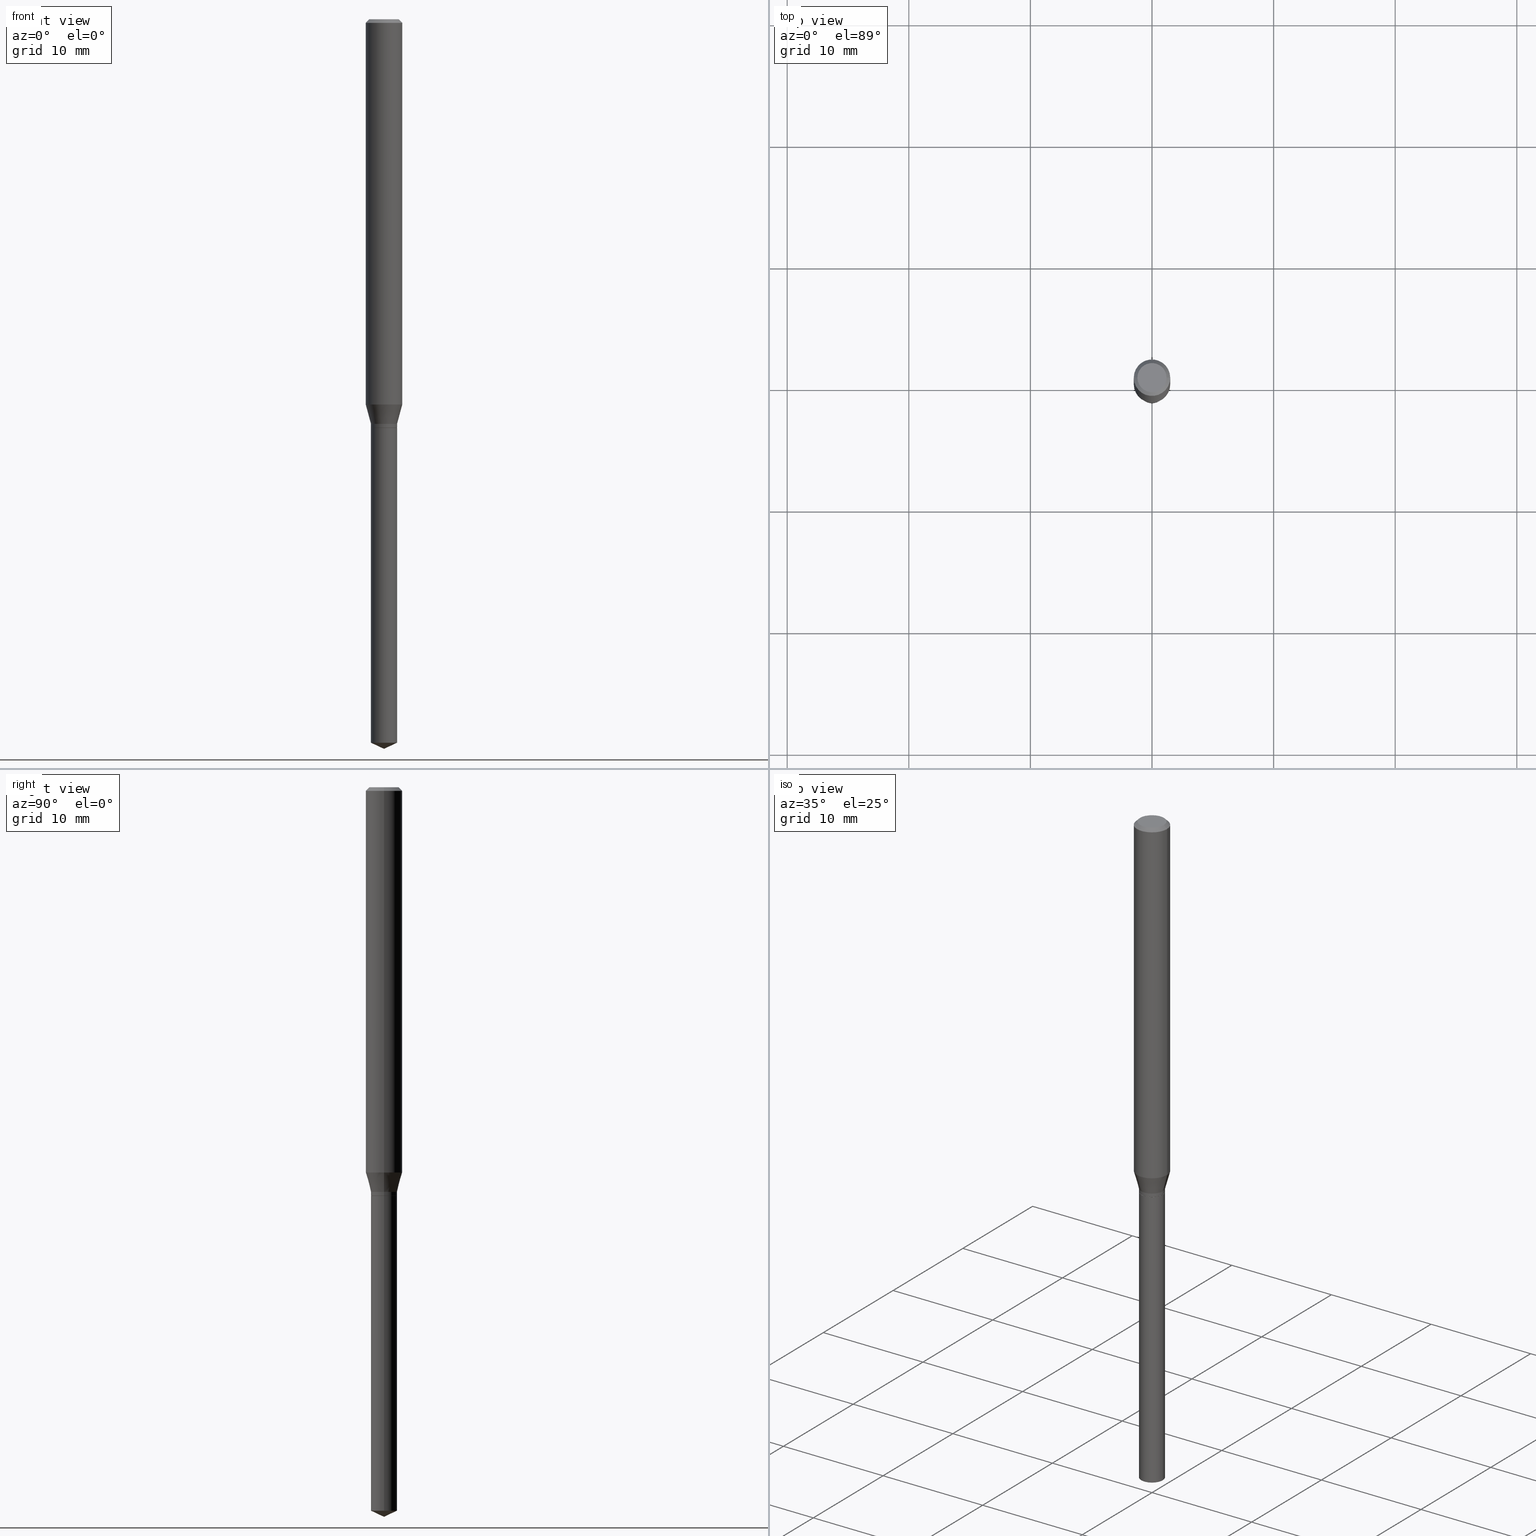
[diagram: canonical four-view strip — front | top / right | iso, engineering-drawing reading convention]
A machine part, canonical four-view strip (front | top / right | iso — engineering-drawing reading convention). The complete STEP part file that produces these views, byte-faithful:
ISO-10303-21;
HEADER;
FILE_DESCRIPTION (( 'STEP AP203' ),
    '1' );
FILE_NAME ('07963.STEP',
    '2024-04-24T07:24:16',
    ( '' ),
    ( '' ),
    'SwSTEP 2.0',
    'SolidWorks 2023',
    '' );
FILE_SCHEMA (( 'CONFIG_CONTROL_DESIGN' ));
ENDSEC;

DATA;
#1 = AXIS2_PLACEMENT_3D ( 'NONE', #385, #116, #303 ) ;
#2 = CIRCLE ( 'NONE', #24, 0.04230000000000002508 ) ;
#3 = DIRECTION ( 'NONE',  ( -0.2588190451025225713, 5.211531920934557353E-15, 0.9659258262890676461 ) ) ;
#4 = CARTESIAN_POINT ( 'NONE',  ( 0.04230000000000002508, -2.953793212661292507E-16, 2.062622776161681872E-30 ) ) ;
#5 = DIMENSIONAL_EXPONENTS ( 1.000000000000000000, 0.000000000000000000, 0.000000000000000000, 0.000000000000000000, 0.000000000000000000, 0.000000000000000000, 0.000000000000000000 ) ;
#6 = DIRECTION ( 'NONE',  ( 1.000000000000000000, -6.982962677686267499E-15, 0.000000000000000000 ) ) ;
#7 = CONICAL_SURFACE ( 'NONE', #98, 0.04179999999999999688, 0.7853981633978495136 ) ;
#8 = ORIENTED_EDGE ( 'NONE', *, *, #452, .F. ) ;
#9 = DIRECTION ( 'NONE',  ( -2.445468806185136597E-29, 3.491481338843145583E-15, 1.000000000000000000 ) ) ;
#10 = VERTEX_POINT ( 'NONE', #488 ) ;
#11 = DIRECTION ( 'NONE',  ( -2.445468806185136597E-29, 3.491481338843145583E-15, 1.000000000000000000 ) ) ;
#12 = CARTESIAN_POINT ( 'NONE',  ( 3.203808682983147121E-29, -4.574189702018404300E-15, -1.310099999999999820 ) ) ;
#13 = EDGE_LOOP ( 'NONE', ( #280, #482, #296, #170 ) ) ;
#14 = AXIS2_PLACEMENT_3D ( 'NONE', #70, #228, #382 ) ;
#15 = FACE_OUTER_BOUND ( 'NONE', #258, .T. ) ;
#16 = VECTOR ( 'NONE', #3, 39.37007874015748854 ) ;
#17 = ADVANCED_FACE ( 'NONE', ( #346 ), #307, .F. ) ;
#18 = LINE ( 'NONE', #103, #411 ) ;
#19 = DESIGN_CONTEXT ( 'detailed design', #187, 'design' ) ;
#20 = EDGE_CURVE ( 'NONE', #260, #143, #85, .T. ) ;
#21 = LINE ( 'NONE', #369, #311 ) ;
#22 = ORIENTED_EDGE ( 'NONE', *, *, #234, .T. ) ;
#23 = VERTEX_POINT ( 'NONE', #195 ) ;
#24 = AXIS2_PLACEMENT_3D ( 'NONE', #284, #472, #289 ) ;
#25 = LINE ( 'NONE', #221, #370 ) ;
#26 = CC_DESIGN_DATE_AND_TIME_ASSIGNMENT ( #147, #185, ( #364 ) ) ;
#27 = ORIENTED_EDGE ( 'NONE', *, *, #256, .F. ) ;
#28 = CARTESIAN_POINT ( 'NONE',  ( 3.050937901280267645E-29, -4.355930740701863379E-15, -1.247588148973221012 ) ) ;
#29 = ORIENTED_EDGE ( 'NONE', *, *, #191, .T. ) ;
#30 = DIRECTION ( 'NONE',  ( 0.000000000000000000, 0.000000000000000000, 1.000000000000000000 ) ) ;
#31 = ORIENTED_EDGE ( 'NONE', *, *, #252, .F. ) ;
#32 = SHAPE_DEFINITION_REPRESENTATION ( #255, #338 ) ;
#33 = AXIS2_PLACEMENT_3D ( 'NONE', #175, #444, #332 ) ;
#34 = EDGE_LOOP ( 'NONE', ( #224, #242, #330, #485 ) ) ;
#35 = DATE_AND_TIME ( #193, #236 ) ;
#36 = CC_DESIGN_APPROVAL ( #337, ( #199 ) ) ;
#37 = CARTESIAN_POINT ( 'NONE',  ( 3.203808682983147121E-29, -4.574189702018404300E-15, -1.310099999999999820 ) ) ;
#38 = CALENDAR_DATE ( 2024, 24, 4 ) ;
#39 = PERSON_AND_ORGANIZATION ( #424, #99 ) ;
#40 = CC_DESIGN_PERSON_AND_ORGANIZATION_ASSIGNMENT ( #190, #112, ( #396 ) ) ;
#41 = DIRECTION ( 'NONE',  ( -2.445468806185136597E-29, 3.491481338843145583E-15, 1.000000000000000000 ) ) ;
#42 = DIRECTION ( 'NONE',  ( 1.000000000000000000, -6.982962677686266711E-15, 4.876176775795935232E-29 ) ) ;
#43 = ORIENTED_EDGE ( 'NONE', *, *, #442, .F. ) ;
#44 = ADVANCED_FACE ( 'NONE', ( #308 ), #153, .T. ) ;
#45 = CARTESIAN_POINT ( 'NONE',  ( 2.888098660104664204E-31, -4.123439461173780263E-17, -0.01181000000000007218 ) ) ;
#46 = CONICAL_SURFACE ( 'NONE', #247, 0.05904999999999999832, 0.7853981633974452814 ) ;
#47 = DIRECTION ( 'NONE',  ( -2.445468806185136877E-29, 3.491481338843145188E-15, 1.000000000000000000 ) ) ;
#48 = CYLINDRICAL_SURFACE ( 'NONE', #33, 0.05905000000000007465 ) ;
#49 = EDGE_LOOP ( 'NONE', ( #56, #141 ) ) ;
#50 = FACE_OUTER_BOUND ( 'NONE', #435, .T. ) ;
#51 = DIRECTION ( 'NONE',  ( 0.2588190451025225713, 1.565188264969611712E-15, 0.9659258262890676461 ) ) ;
#52 = AXIS2_PLACEMENT_3D ( 'NONE', #265, #335, #339 ) ;
#53 = ADVANCED_FACE ( 'NONE', ( #269 ), #419, .F. ) ;
#54 = DIRECTION ( 'NONE',  ( 1.000000000000000000, -6.982962677686266711E-15, 0.000000000000000000 ) ) ;
#55 = FACE_OUTER_BOUND ( 'NONE', #407, .T. ) ;
#56 = ORIENTED_EDGE ( 'NONE', *, *, #20, .T. ) ;
#57 = EDGE_LOOP ( 'NONE', ( #218, #61 ) ) ;
#58 = DIRECTION ( 'NONE',  ( 1.000000000000000000, -6.982962677686266711E-15, 4.876185090822587894E-29 ) ) ;
#59 = EDGE_CURVE ( 'NONE', #10, #23, #239, .T. ) ;
#60 = VECTOR ( 'NONE', #51, 39.37007874015748854 ) ;
#61 = ORIENTED_EDGE ( 'NONE', *, *, #344, .F. ) ;
#62 = DIRECTION ( 'NONE',  ( -2.445468806185136597E-29, 3.491481338843145583E-15, 1.000000000000000000 ) ) ;
#63 = APPROVAL_PERSON_ORGANIZATION ( #413, #337, #342 ) ;
#64 = ORIENTED_EDGE ( 'NONE', *, *, #467, .F. ) ;
#65 = APPROVAL_STATUS ( 'not_yet_approved' ) ;
#66 = ORIENTED_EDGE ( 'NONE', *, *, #398, .T. ) ;
#67 = EDGE_CURVE ( 'NONE', #111, #254, #484, .T. ) ;
#68 = COORDINATED_UNIVERSAL_TIME_OFFSET ( 5, 0, .BEHIND. ) ;
#69 = CIRCLE ( 'NONE', #226, 0.04724000000000000421 ) ;
#70 = CARTESIAN_POINT ( 'NONE',  ( 3.050937901280267645E-29, -4.355930740701863379E-15, -1.247588148973221012 ) ) ;
#71 = LOCAL_TIME ( 3, 24, 16.00000000000000000, #264 ) ;
#72 = PERSON_AND_ORGANIZATION ( #424, #99 ) ;
#73 = APPROVAL_DATE_TIME ( #374, #337 ) ;
#74 = EDGE_CURVE ( 'NONE', #104, #480, #159, .T. ) ;
#75 = DIRECTION ( 'NONE',  ( -2.445468806185136597E-29, 3.491481338843145583E-15, 1.000000000000000000 ) ) ;
#76 = AXIS2_PLACEMENT_3D ( 'NONE', #37, #208, #399 ) ;
#77 = DIRECTION ( 'NONE',  ( 1.000000000000000000, -6.982962677686266711E-15, 0.000000000000000000 ) ) ;
#78 = VECTOR ( 'NONE', #292, 39.37007874015748854 ) ;
#79 = CARTESIAN_POINT ( 'NONE',  ( 5.776686413970529753E-29, -8.247577218615279626E-15, -2.362200000000000077 ) ) ;
#80 = ORIENTED_EDGE ( 'NONE', *, *, #398, .F. ) ;
#81 = ADVANCED_FACE ( 'NONE', ( #161 ), #148, .T. ) ;
#82 = CARTESIAN_POINT ( 'NONE',  ( 3.234866136821698001E-29, -4.618531515021712068E-15, -1.322799999999999976 ) ) ;
#83 = CARTESIAN_POINT ( 'NONE',  ( 0.04230000000000002508, -4.869569023284533748E-15, -1.310099999999999820 ) ) ;
#84 = EDGE_CURVE ( 'NONE', #111, #10, #314, .T. ) ;
#85 = CIRCLE ( 'NONE', #52, 0.04229999999999999732 ) ;
#86 = DIRECTION ( 'NONE',  ( 1.000000000000000000, -6.982962677686265922E-15, 4.876176775795935793E-29 ) ) ;
#87 = FACE_OUTER_BOUND ( 'NONE', #13, .T. ) ;
#88 = AXIS2_PLACEMENT_3D ( 'NONE', #392, #429, #207 ) ;
#89 = EDGE_LOOP ( 'NONE', ( #328, #477 ) ) ;
#90 = DIRECTION ( 'NONE',  ( 2.445468806185136597E-29, -3.491481338843145583E-15, -1.000000000000000000 ) ) ;
#91 = CARTESIAN_POINT ( 'NONE',  ( 0.04229999999999999039, -8.474087720097896085E-15, -2.342475186060043235 ) ) ;
#92 = DIRECTION ( 'NONE',  ( -2.445468806185136877E-29, 3.491481338843145188E-15, 1.000000000000000000 ) ) ;
#93 = DIRECTION ( 'NONE',  ( -2.445468806185136597E-29, 3.491481338843145583E-15, 1.000000000000000000 ) ) ;
#94 = ORIENTED_EDGE ( 'NONE', *, *, #327, .F. ) ;
#95 = CARTESIAN_POINT ( 'NONE',  ( 0.04724000000000000421, -3.852183633974369345E-16, -3.380025165621689721E-19 ) ) ;
#96 = ORIENTED_EDGE ( 'NONE', *, *, #418, .F. ) ;
#97 = EDGE_CURVE ( 'NONE', #107, #412, #343, .T. ) ;
#98 = AXIS2_PLACEMENT_3D ( 'NONE', #449, #361, #172 ) ;
#99 = ORGANIZATION ( 'UNSPECIFIED', 'UNSPECIFIED', '' ) ;
#100 = LOCAL_TIME ( 3, 24, 16.00000000000000000, #305 ) ;
#101 = VERTEX_POINT ( 'NONE', #91 ) ;
#102 = CC_DESIGN_DATE_AND_TIME_ASSIGNMENT ( #416, #118, ( #199 ) ) ;
#103 = CARTESIAN_POINT ( 'NONE',  ( -0.05904999999999999832, 3.711095515056362547E-16, -0.01181000000000007218 ) ) ;
#104 = VERTEX_POINT ( 'NONE', #431 ) ;
#105 = LINE ( 'NONE', #321, #270 ) ;
#106 = CARTESIAN_POINT ( 'NONE',  ( 8.265746106709734507E-48, -1.180129479067563789E-33, -3.380025165646692144E-19 ) ) ;
#107 = VERTEX_POINT ( 'NONE', #238 ) ;
#108 = VECTOR ( 'NONE', #181, 39.37007874015748143 ) ;
#109 = PERSON_AND_ORGANIZATION ( #424, #99 ) ;
#110 = ADVANCED_FACE ( 'NONE', ( #87 ), #433, .T. ) ;
#111 = VERTEX_POINT ( 'NONE', #125 ) ;
#112 = PERSON_AND_ORGANIZATION_ROLE ( 'creator' ) ;
#113 = MANIFOLD_SOLID_BREP ( 'Body-Move/Copy2[2]', #446 ) ;
#114 = CIRCLE ( 'NONE', #456, 0.05905000000000015098 ) ;
#115 = MECHANICAL_CONTEXT ( 'NONE', #133, 'mechanical' ) ;
#116 = DIRECTION ( 'NONE',  ( 2.438088387897960049E-29, -3.491481338843145188E-15, -1.000000000000000000 ) ) ;
#117 = APPROVAL ( #297, 'UNSPECIFIED' ) ;
#118 = DATE_TIME_ROLE ( 'creation_date' ) ;
#119 = CARTESIAN_POINT ( 'NONE',  ( 4.132873053354867254E-48, -5.900647395337818946E-34, -1.690012582823346072E-19 ) ) ;
#120 = AXIS2_PLACEMENT_3D ( 'NONE', #353, #9, #173 ) ;
#121 = EDGE_CURVE ( 'NONE', #254, #111, #409, .T. ) ;
#122 = CARTESIAN_POINT ( 'NONE',  ( 3.203808682983147121E-29, -4.574189702018404300E-15, -1.310099999999999820 ) ) ;
#123 = ORIENTED_EDGE ( 'NONE', *, *, #97, .F. ) ;
#124 = DIRECTION ( 'NONE',  ( -2.445468806185136597E-29, 3.491481338843145583E-15, 1.000000000000000000 ) ) ;
#125 = CARTESIAN_POINT ( 'NONE',  ( 0.04230000000000002508, -4.869569023284533748E-15, -1.310099999999999820 ) ) ;
#126 = CC_DESIGN_PERSON_AND_ORGANIZATION_ASSIGNMENT ( #331, #458, ( #364 ) ) ;
#127 = DIRECTION ( 'NONE',  ( -1.000000000000000000, 6.982962677686266711E-15, 0.000000000000000000 ) ) ;
#128 = LINE ( 'NONE', #279, #468 ) ;
#129 = ORIENTED_EDGE ( 'NONE', *, *, #84, .F. ) ;
#130 = DIRECTION ( 'NONE',  ( -1.000000000000000000, 6.982962677686266711E-15, 0.000000000000000000 ) ) ;
#131 = VECTOR ( 'NONE', #315, 39.37007874015748854 ) ;
#132 = CARTESIAN_POINT ( 'NONE',  ( 3.234866136821698001E-29, -4.618531515021712068E-15, -1.322799999999999976 ) ) ;
#133 = APPLICATION_CONTEXT ( 'configuration controlled 3d designs of mechanical parts and assemblies' ) ;
#134 = CARTESIAN_POINT ( 'NONE',  ( -9.050161304213721862E-28, 1.292123180114298356E-13, 37.00787874015748002 ) ) ;
#135 = ORIENTED_EDGE ( 'NONE', *, *, #97, .T. ) ;
#136 = CARTESIAN_POINT ( 'NONE',  ( -0.04229999999999999732, -4.317971937795189659E-15, -1.322799999999999976 ) ) ;
#137 = EDGE_LOOP ( 'NONE', ( #293, #288, #363, #80 ) ) ;
#138 = DIRECTION ( 'NONE',  ( -2.445468806185136877E-29, 3.491481338843145188E-15, 1.000000000000000000 ) ) ;
#139 = ADVANCED_FACE ( 'NONE', ( #357 ), #168, .T. ) ;
#140 = VECTOR ( 'NONE', #47, 39.37007874015748143 ) ;
#141 = ORIENTED_EDGE ( 'NONE', *, *, #313, .T. ) ;
#142 = CARTESIAN_POINT ( 'NONE',  ( -9.050161304213721862E-28, 1.292123180114298356E-13, 37.00787874015748002 ) ) ;
#143 = VERTEX_POINT ( 'NONE', #198 ) ;
#144 = CARTESIAN_POINT ( 'NONE',  ( -0.05905000000000007465, 4.195754854663396902E-16, -2.904631170795525395E-30 ) ) ;
#145 = EDGE_LOOP ( 'NONE', ( #189, #324, #94 ) ) ;
#146 = EDGE_CURVE ( 'NONE', #10, #107, #128, .T. ) ;
#147 = DATE_AND_TIME ( #266, #316 ) ;
#148 = CONICAL_SURFACE ( 'NONE', #194, 84.42940631927322670, 1.134464013796310899 ) ;
#149 = DIRECTION ( 'NONE',  ( 1.000000000000000000, -6.982962677686267499E-15, 0.000000000000000000 ) ) ;
#150 = VERTEX_POINT ( 'NONE', #469 ) ;
#151 = COORDINATED_UNIVERSAL_TIME_OFFSET ( 5, 0, .BEHIND. ) ;
#152 = CC_DESIGN_PERSON_AND_ORGANIZATION_ASSIGNMENT ( #39, #261, ( #396 ) ) ;
#153 = CYLINDRICAL_SURFACE ( 'NONE', #155, 0.05905000000000007465 ) ;
#154 = APPLICATION_PROTOCOL_DEFINITION ( 'international standard', 'config_control_design', 1994, #187 ) ;
#155 = AXIS2_PLACEMENT_3D ( 'NONE', #267, #75, #459 ) ;
#156 = VECTOR ( 'NONE', #138, 39.37007874015748143 ) ;
#157 = DIRECTION ( 'NONE',  ( 1.000000000000000000, 0.000000000000000000, 0.000000000000000000 ) ) ;
#158 = FACE_OUTER_BOUND ( 'NONE', #230, .T. ) ;
#159 = LINE ( 'NONE', #355, #219 ) ;
#160 = AXIS2_PLACEMENT_3D ( 'NONE', #466, #93, #42 ) ;
#161 = FACE_OUTER_BOUND ( 'NONE', #300, .T. ) ;
#162 = EDGE_LOOP ( 'NONE', ( #464, #450, #291, #473 ) ) ;
#163 = DIRECTION ( 'NONE',  ( 1.000000000000000000, -6.982962677686261977E-15, 0.000000000000000000 ) ) ;
#164 = ORIENTED_EDGE ( 'NONE', *, *, #434, .F. ) ;
#165 = DIRECTION ( 'NONE',  ( -2.445468806185136597E-29, 3.491481338843145583E-15, 1.000000000000000000 ) ) ;
#166 = CC_DESIGN_PERSON_AND_ORGANIZATION_ASSIGNMENT ( #447, #383, ( #199 ) ) ;
#167 = CYLINDRICAL_SURFACE ( 'NONE', #120, 0.04229999999999999732 ) ;
#168 = CYLINDRICAL_SURFACE ( 'NONE', #160, 0.04230000000000002508 ) ;
#169 = CIRCLE ( 'NONE', #88, 0.04229999999999999732 ) ;
#170 = ORIENTED_EDGE ( 'NONE', *, *, #423, .F. ) ;
#171 = CARTESIAN_POINT ( 'NONE',  ( 5.776686413970529753E-29, -8.247577218615279626E-15, -2.362200000000000077 ) ) ;
#172 = DIRECTION ( 'NONE',  ( 1.000000000000000000, -6.982962677686277755E-15, 0.000000000000000000 ) ) ;
#173 = DIRECTION ( 'NONE',  ( 1.000000000000000000, -6.982962677686266711E-15, 0.000000000000000000 ) ) ;
#174 = ADVANCED_FACE ( 'NONE', ( #394 ), #48, .T. ) ;
#175 = CARTESIAN_POINT ( 'NONE',  ( 0.000000000000000000, 0.000000000000000000, 0.000000000000000000 ) ) ;
#176 = ORIENTED_EDGE ( 'NONE', *, *, #74, .T. ) ;
#177 = LENGTH_MEASURE_WITH_UNIT ( LENGTH_MEASURE( 0.02539999999999999897 ), #474 );
#178 = DIRECTION ( 'NONE',  ( -2.445468806185136597E-29, 3.491481338843145583E-15, 1.000000000000000000 ) ) ;
#179 = AXIS2_PLACEMENT_3D ( 'NONE', #45, #354, #127 ) ;
#180 = ORIENTED_EDGE ( 'NONE', *, *, #414, .T. ) ;
#181 = DIRECTION ( 'NONE',  ( -2.445468806185136877E-29, 3.491481338843145188E-15, 1.000000000000000000 ) ) ;
#182 = ORIENTED_EDGE ( 'NONE', *, *, #146, .F. ) ;
#183 = DIRECTION ( 'NONE',  ( -0.7071067811865453523, 2.468850131082234184E-15, -0.7071067811865496822 ) ) ;
#184 = ORIENTED_EDGE ( 'NONE', *, *, #467, .T. ) ;
#185 = DATE_TIME_ROLE ( 'classification_date' ) ;
#186 =( GEOMETRIC_REPRESENTATION_CONTEXT ( 3 ) GLOBAL_UNCERTAINTY_ASSIGNED_CONTEXT ( ( #192 ) ) GLOBAL_UNIT_ASSIGNED_CONTEXT ( ( #286, #362, #437 ) ) REPRESENTATION_CONTEXT ( 'NONE', 'WORKASPACE' ) );
#187 = APPLICATION_CONTEXT ( 'configuration controlled 3d designs of mechanical parts and assemblies' ) ;
#188 = ADVANCED_FACE ( 'NONE', ( #210 ), #478, .T. ) ;
#189 = ORIENTED_EDGE ( 'NONE', *, *, #191, .F. ) ;
#190 = PERSON_AND_ORGANIZATION ( #424, #99 ) ;
#191 = EDGE_CURVE ( 'NONE', #408, #101, #290, .T. ) ;
#192 = UNCERTAINTY_MEASURE_WITH_UNIT (LENGTH_MEASURE( 1.000000000000000082E-05 ), #286, 'distance_accuracy_value', 'NONE');
#193 = CALENDAR_DATE ( 2024, 24, 4 ) ;
#194 = AXIS2_PLACEMENT_3D ( 'NONE', #134, #285, #6 ) ;
#195 = CARTESIAN_POINT ( 'NONE',  ( -0.05905000000000015098, -3.936355255235523098E-15, -1.247588148973221012 ) ) ;
#196 = AXIS2_PLACEMENT_3D ( 'NONE', #243, #390, #465 ) ;
#197 = EDGE_CURVE ( 'NONE', #150, #206, #69, .T. ) ;
#198 = CARTESIAN_POINT ( 'NONE',  ( -0.04229999999999999732, -6.098060379700217338E-15, -1.322799999999999976 ) ) ;
#199 = PRODUCT_DEFINITION ( 'UNKNOWN', '', #396, #19 ) ;
#200 = DIRECTION ( 'NONE',  ( -2.445468806185136597E-29, 3.491481338843145583E-15, 1.000000000000000000 ) ) ;
#201 = CLOSED_SHELL ( 'NONE', ( #454, #188, #81, #381, #17 ) ) ;
#202 = CIRCLE ( 'NONE', #196, 0.04229999999999999732 ) ;
#203 = DIRECTION ( 'NONE',  ( 1.000000000000000000, -6.982962677686277755E-15, 0.000000000000000000 ) ) ;
#204 = LINE ( 'NONE', #271, #16 ) ;
#205 = ADVANCED_FACE ( 'NONE', ( #298 ), #7, .T. ) ;
#206 = VERTEX_POINT ( 'NONE', #95 ) ;
#207 = DIRECTION ( 'NONE',  ( 1.000000000000000000, -6.982962677686266711E-15, 0.000000000000000000 ) ) ;
#208 = DIRECTION ( 'NONE',  ( -2.445468806185136597E-29, 3.491481338843145583E-15, 1.000000000000000000 ) ) ;
#209 = FACE_OUTER_BOUND ( 'NONE', #470, .T. ) ;
#210 = FACE_OUTER_BOUND ( 'NONE', #145, .T. ) ;
#211 = AXIS2_PLACEMENT_3D ( 'NONE', #235, #309, #86 ) ;
#212 = VERTEX_POINT ( 'NONE', #246 ) ;
#213 = CARTESIAN_POINT ( 'NONE',  ( 8.265746106709734507E-48, -1.180129479067563789E-33, -3.380025165646692144E-19 ) ) ;
#214 = CYLINDRICAL_SURFACE ( 'NONE', #359, 0.04230000000000002508 ) ;
#215 = ORIENTED_EDGE ( 'NONE', *, *, #405, .F. ) ;
#216 = APPROVAL_PERSON_ORGANIZATION ( #301, #117, #451 ) ;
#217 = LOCAL_TIME ( 3, 24, 16.00000000000000000, #68 ) ;
#218 = ORIENTED_EDGE ( 'NONE', *, *, #348, .F. ) ;
#219 = VECTOR ( 'NONE', #350, 39.37007874015748143 ) ;
#220 = LINE ( 'NONE', #400, #108 ) ;
#221 = CARTESIAN_POINT ( 'NONE',  ( 0.04179999999999999688, -4.910419354948998509E-15, -1.322799999999999976 ) ) ;
#222 = VERTEX_POINT ( 'NONE', #403 ) ;
#223 = APPLICATION_PROTOCOL_DEFINITION ( 'international standard', 'config_control_design', 1994, #133 ) ;
#224 = ORIENTED_EDGE ( 'NONE', *, *, #414, .F. ) ;
#225 = CALENDAR_DATE ( 2024, 24, 4 ) ;
#226 = AXIS2_PLACEMENT_3D ( 'NONE', #106, #440, #287 ) ;
#227 = ADVANCED_FACE ( 'NONE', ( #55 ), #214, .T. ) ;
#228 = DIRECTION ( 'NONE',  ( -2.445468806185136597E-29, 3.491481338843145583E-15, 1.000000000000000000 ) ) ;
#229 = CALENDAR_DATE ( 2024, 24, 4 ) ;
#230 = EDGE_LOOP ( 'NONE', ( #8, #438, #135, #96 ) ) ;
#231 = CC_DESIGN_SECURITY_CLASSIFICATION ( #364, ( #396 ) ) ;
#232 = AXIS2_PLACEMENT_3D ( 'NONE', #388, #347, #241 ) ;
#233 = LINE ( 'NONE', #79, #131 ) ;
#234 = EDGE_CURVE ( 'NONE', #212, #101, #352, .T. ) ;
#235 = CARTESIAN_POINT ( 'NONE',  ( 3.234866136821698001E-29, -4.618531515021712068E-15, -1.322799999999999976 ) ) ;
#236 = LOCAL_TIME ( 3, 24, 16.00000000000000000, #380 ) ;
#237 = PLANE ( 'NONE',  #211 ) ;
#238 = CARTESIAN_POINT ( 'NONE',  ( 0.05904999999999999832, -4.535783407291118600E-16, -0.01181000000000007218 ) ) ;
#239 = CIRCLE ( 'NONE', #14, 0.05905000000000015098 ) ;
#240 = CIRCLE ( 'NONE', #304, 0.04179999999999999688 ) ;
#241 = DIRECTION ( 'NONE',  ( 1.000000000000000000, -6.982962677686277755E-15, 0.000000000000000000 ) ) ;
#242 = ORIENTED_EDGE ( 'NONE', *, *, #423, .T. ) ;
#243 = CARTESIAN_POINT ( 'NONE',  ( 5.728449996772559729E-29, -8.178708398831766638E-15, -2.342475186060043235 ) ) ;
#244 = DIRECTION ( 'NONE',  ( 0.7071067811865453523, -7.319954787623248157E-15, -0.7071067811865496822 ) ) ;
#245 = ORIENTED_EDGE ( 'NONE', *, *, #272, .T. ) ;
#246 = CARTESIAN_POINT ( 'NONE',  ( -0.04229999999999999039, -7.878148821605244229E-15, -2.342475186060043235 ) ) ;
#247 = AXIS2_PLACEMENT_3D ( 'NONE', #422, #90, #130 ) ;
#248 = EDGE_LOOP ( 'NONE', ( #64, #66, #276, #445 ) ) ;
#249 = APPROVAL ( #334, 'UNSPECIFIED' ) ;
#250 = CARTESIAN_POINT ( 'NONE',  ( -0.05904999999999999832, -1.779007082190460272E-15, -0.01181000000000007218 ) ) ;
#251 = VERTEX_POINT ( 'NONE', #417 ) ;
#252 = EDGE_CURVE ( 'NONE', #222, #111, #389, .T. ) ;
#253 = CARTESIAN_POINT ( 'NONE',  ( -0.04230000000000002508, -4.294928160958825812E-15, -1.322300000000000253 ) ) ;
#254 = VERTEX_POINT ( 'NONE', #356 ) ;
#255 = PRODUCT_DEFINITION_SHAPE ( 'NONE', 'NONE',  #199 ) ;
#256 = EDGE_CURVE ( 'NONE', #408, #212, #233, .T. ) ;
#257 = AXIS2_PLACEMENT_3D ( 'NONE', #278, #200, #77 ) ;
#258 = EDGE_LOOP ( 'NONE', ( #43, #22, #351, #371 ) ) ;
#259 = PERSON_AND_ORGANIZATION_ROLE ( 'design_owner' ) ;
#260 = VERTEX_POINT ( 'NONE', #397 ) ;
#261 = PERSON_AND_ORGANIZATION_ROLE ( 'design_supplier' ) ;
#262 = CC_DESIGN_APPROVAL ( #249, ( #364 ) ) ;
#263 = AXIS2_PLACEMENT_3D ( 'NONE', #82, #41, #203 ) ;
#264 = COORDINATED_UNIVERSAL_TIME_OFFSET ( 5, 0, .BEHIND. ) ;
#265 = CARTESIAN_POINT ( 'NONE',  ( 3.234866136821698001E-29, -4.618531515021712068E-15, -1.322799999999999976 ) ) ;
#266 = CALENDAR_DATE ( 2024, 24, 4 ) ;
#267 = CARTESIAN_POINT ( 'NONE',  ( 0.000000000000000000, 0.000000000000000000, 0.000000000000000000 ) ) ;
#268 = AXIS2_PLACEMENT_3D ( 'NONE', #310, #463, #461 ) ;
#269 = FACE_OUTER_BOUND ( 'NONE', #89, .T. ) ;
#270 = VECTOR ( 'NONE', #244, 39.37007874015748143 ) ;
#271 = CARTESIAN_POINT ( 'NONE',  ( -0.04230000000000002508, -4.273630124791881891E-15, -1.310099999999999820 ) ) ;
#272 = EDGE_CURVE ( 'NONE', #412, #107, #325, .T. ) ;
#273 = EDGE_LOOP ( 'NONE', ( #462, #373, #368, #245 ) ) ;
#274 = DIRECTION ( 'NONE',  ( 1.000000000000000000, -6.982962677686266711E-15, 4.876176775795935232E-29 ) ) ;
#275 = DIRECTION ( 'NONE',  ( -2.445468806185136597E-29, 3.491481338843145583E-15, 1.000000000000000000 ) ) ;
#276 = ORIENTED_EDGE ( 'NONE', *, *, #252, .T. ) ;
#277 = CC_DESIGN_PERSON_AND_ORGANIZATION_ASSIGNMENT ( #72, #259, ( #367 ) ) ;
#278 = CARTESIAN_POINT ( 'NONE',  ( 5.728449996772559729E-29, -8.178708398831766638E-15, -2.342475186060043235 ) ) ;
#279 = CARTESIAN_POINT ( 'NONE',  ( 0.05905000000000007465, -4.123439461173745750E-16, 2.879382386107504074E-30 ) ) ;
#280 = ORIENTED_EDGE ( 'NONE', *, *, #320, .F. ) ;
#281 = CIRCLE ( 'NONE', #471, 0.04724000000000000421 ) ;
#282 = DIRECTION ( 'NONE',  ( 1.000000000000000000, -6.982962677686266711E-15, 0.000000000000000000 ) ) ;
#283 = DIRECTION ( 'NONE',  ( -2.445468806185136597E-29, 3.491481338843145583E-15, 1.000000000000000000 ) ) ;
#284 = CARTESIAN_POINT ( 'NONE',  ( 3.233643402418606881E-29, -4.616785774352292931E-15, -1.322300000000000253 ) ) ;
#285 = DIRECTION ( 'NONE',  ( -2.445468806185136597E-29, 3.491481338843145583E-15, 1.000000000000000000 ) ) ;
#286 =( CONVERSION_BASED_UNIT ( 'INCH', #177 ) LENGTH_UNIT ( ) NAMED_UNIT ( #5 ) );
#287 = DIRECTION ( 'NONE',  ( 1.000000000000000000, -6.982962677686266711E-15, 4.876185090822587894E-29 ) ) ;
#288 = ORIENTED_EDGE ( 'NONE', *, *, #344, .T. ) ;
#289 = DIRECTION ( 'NONE',  ( 1.000000000000000000, -6.982962677686261977E-15, 0.000000000000000000 ) ) ;
#290 = LINE ( 'NONE', #326, #78 ) ;
#291 = ORIENTED_EDGE ( 'NONE', *, *, #20, .F. ) ;
#292 = DIRECTION ( 'NONE',  ( 0.9063077870366484934, -4.853149677051359068E-15, 0.4226182617407023834 ) ) ;
#293 = ORIENTED_EDGE ( 'NONE', *, *, #74, .F. ) ;
#294 = ADVANCED_FACE ( 'NONE', ( #312 ), #237, .F. ) ;
#295 = FACE_OUTER_BOUND ( 'NONE', #162, .T. ) ;
#296 = ORIENTED_EDGE ( 'NONE', *, *, #84, .T. ) ;
#297 = APPROVAL_STATUS ( 'not_yet_approved' ) ;
#298 = FACE_OUTER_BOUND ( 'NONE', #137, .T. ) ;
#299 = CIRCLE ( 'NONE', #263, 0.04179999999999999688 ) ;
#300 = EDGE_LOOP ( 'NONE', ( #27, #29, #441 ) ) ;
#301 = PERSON_AND_ORGANIZATION ( #424, #99 ) ;
#302 = ADVANCED_FACE ( 'NONE', ( #50 ), #345, .T. ) ;
#303 = DIRECTION ( 'NONE',  ( -1.000000000000000000, 6.982962677686265922E-15, -4.876176775795935793E-29 ) ) ;
#304 = AXIS2_PLACEMENT_3D ( 'NONE', #319, #165, #317 ) ;
#305 = COORDINATED_UNIVERSAL_TIME_OFFSET ( 5, 0, .BEHIND. ) ;
#306 = CARTESIAN_POINT ( 'NONE',  ( 0.000000000000000000, 0.000000000000000000, 0.000000000000000000 ) ) ;
#307 = PLANE ( 'NONE',  #1 ) ;
#308 = FACE_OUTER_BOUND ( 'NONE', #34, .T. ) ;
#309 = DIRECTION ( 'NONE',  ( -2.438088387897960049E-29, 3.491481338843145188E-15, 1.000000000000000000 ) ) ;
#310 = CARTESIAN_POINT ( 'NONE',  ( 2.888098660104664204E-31, -4.123439461173780263E-17, -0.01181000000000007218 ) ) ;
#311 = VECTOR ( 'NONE', #406, 39.37007874015748143 ) ;
#312 = FACE_OUTER_BOUND ( 'NONE', #57, .T. ) ;
#313 = EDGE_CURVE ( 'NONE', #143, #260, #169, .T. ) ;
#314 = LINE ( 'NONE', #83, #60 ) ;
#315 = DIRECTION ( 'NONE',  ( -0.9063077870366484934, 7.915267918739014631E-15, 0.4226182617407023834 ) ) ;
#316 = LOCAL_TIME ( 3, 24, 16.00000000000000000, #151 ) ;
#317 = DIRECTION ( 'NONE',  ( 1.000000000000000000, -6.982962677686277755E-15, 0.000000000000000000 ) ) ;
#318 = DIRECTION ( 'NONE',  ( 1.000000000000000000, -6.982962677686261977E-15, 0.000000000000000000 ) ) ;
#319 = CARTESIAN_POINT ( 'NONE',  ( 3.234866136821698001E-29, -4.618531515021712068E-15, -1.322799999999999976 ) ) ;
#320 = EDGE_CURVE ( 'NONE', #254, #23, #204, .T. ) ;
#321 = CARTESIAN_POINT ( 'NONE',  ( 0.05904999999999999832, -4.463468013801466955E-16, -0.01181000000000007218 ) ) ;
#322 = ORIENTED_EDGE ( 'NONE', *, *, #434, .T. ) ;
#323 = DIRECTION ( 'NONE',  ( -2.445468806185136597E-29, 3.491481338843145583E-15, 1.000000000000000000 ) ) ;
#324 = ORIENTED_EDGE ( 'NONE', *, *, #256, .T. ) ;
#325 = CIRCLE ( 'NONE', #415, 0.05904999999999999832 ) ;
#326 = CARTESIAN_POINT ( 'NONE',  ( 5.776686413970529753E-29, -8.247577218615279626E-15, -2.362200000000000077 ) ) ;
#327 = EDGE_CURVE ( 'NONE', #101, #212, #202, .T. ) ;
#328 = ORIENTED_EDGE ( 'NONE', *, *, #197, .T. ) ;
#329 = DIRECTION ( 'NONE',  ( -2.445468806185136597E-29, 3.491481338843145583E-15, 1.000000000000000000 ) ) ;
#330 = ORIENTED_EDGE ( 'NONE', *, *, #146, .T. ) ;
#331 = PERSON_AND_ORGANIZATION ( #424, #99 ) ;
#332 = DIRECTION ( 'NONE',  ( 1.000000000000000000, -6.982962677686266711E-15, 4.876176775795936353E-29 ) ) ;
#333 = ORIENTED_EDGE ( 'NONE', *, *, #320, .T. ) ;
#334 = APPROVAL_STATUS ( 'not_yet_approved' ) ;
#335 = DIRECTION ( 'NONE',  ( -2.445468806185136597E-29, 3.491481338843145583E-15, 1.000000000000000000 ) ) ;
#336 = SECURITY_CLASSIFICATION_LEVEL ( 'unclassified' ) ;
#337 = APPROVAL ( #65, 'UNSPECIFIED' ) ;
#338 = ADVANCED_BREP_SHAPE_REPRESENTATION ( '07963', ( #421, #113, #379 ), #186 ) ;
#339 = DIRECTION ( 'NONE',  ( 1.000000000000000000, -6.982962677686266711E-15, 0.000000000000000000 ) ) ;
#340 = DATE_AND_TIME ( #225, #217 ) ;
#341 = ADVANCED_FACE ( 'NONE', ( #425 ), #391, .T. ) ;
#342 = APPROVAL_ROLE ( '' ) ;
#343 = CIRCLE ( 'NONE', #268, 0.05904999999999999832 ) ;
#344 = EDGE_CURVE ( 'NONE', #104, #251, #240, .T. ) ;
#345 = CONICAL_SURFACE ( 'NONE', #232, 0.04179999999999999688, 0.7853981633978495136 ) ;
#346 = FACE_OUTER_BOUND ( 'NONE', #49, .T. ) ;
#347 = DIRECTION ( 'NONE',  ( -2.445468806185136597E-29, 3.491481338843145583E-15, 1.000000000000000000 ) ) ;
#348 = EDGE_CURVE ( 'NONE', #251, #104, #299, .T. ) ;
#349 = AXIS2_PLACEMENT_3D ( 'NONE', #119, #490, #453 ) ;
#350 = DIRECTION ( 'NONE',  ( -0.7071067811868312347, 7.493145998871379679E-15, 0.7071067811862637997 ) ) ;
#351 = ORIENTED_EDGE ( 'NONE', *, *, #476, .T. ) ;
#352 = CIRCLE ( 'NONE', #257, 0.04229999999999999732 ) ;
#353 = CARTESIAN_POINT ( 'NONE',  ( 3.234866136821698001E-29, -4.618531515021712068E-15, -1.322799999999999976 ) ) ;
#354 = DIRECTION ( 'NONE',  ( 2.445468806185136597E-29, -3.491481338843145583E-15, -1.000000000000000000 ) ) ;
#355 = CARTESIAN_POINT ( 'NONE',  ( -0.04179999999999999688, -4.321524651473990558E-15, -1.322799999999999976 ) ) ;
#356 = CARTESIAN_POINT ( 'NONE',  ( -0.04230000000000002508, -4.294928160958825812E-15, -1.310099999999999820 ) ) ;
#357 = FACE_OUTER_BOUND ( 'NONE', #248, .T. ) ;
#358 = EDGE_LOOP ( 'NONE', ( #457, #180, #123, #182 ) ) ;
#359 = AXIS2_PLACEMENT_3D ( 'NONE', #306, #11, #274 ) ;
#360 = CARTESIAN_POINT ( 'NONE',  ( 3.203808682983147121E-29, -4.574189702018404300E-15, -1.310099999999999820 ) ) ;
#361 = DIRECTION ( 'NONE',  ( -2.445468806185136597E-29, 3.491481338843145583E-15, 1.000000000000000000 ) ) ;
#362 =( NAMED_UNIT ( * ) PLANE_ANGLE_UNIT ( ) SI_UNIT ( $, .RADIAN. ) );
#363 = ORIENTED_EDGE ( 'NONE', *, *, #405, .T. ) ;
#364 = SECURITY_CLASSIFICATION ( '', '', #336 ) ;
#365 = DIRECTION ( 'NONE',  ( 0.7071067811868312347, -2.468850131085228700E-15, 0.7071067811862637997 ) ) ;
#366 = ADVANCED_FACE ( 'NONE', ( #158 ), #46, .T. ) ;
#367 = PRODUCT ( '07963', '07963', '', ( #115 ) ) ;
#368 = ORIENTED_EDGE ( 'NONE', *, *, #418, .T. ) ;
#369 = CARTESIAN_POINT ( 'NONE',  ( 0.04229999999999999732, -4.913910836287841516E-15, -1.322799999999999976 ) ) ;
#370 = VECTOR ( 'NONE', #365, 39.37007874015748143 ) ;
#371 = ORIENTED_EDGE ( 'NONE', *, *, #313, .F. ) ;
#372 = LINE ( 'NONE', #144, #156 ) ;
#373 = ORIENTED_EDGE ( 'NONE', *, *, #197, .F. ) ;
#374 = DATE_AND_TIME ( #229, #71 ) ;
#375 = ORIENTED_EDGE ( 'NONE', *, *, #59, .F. ) ;
#376 = PRODUCT_RELATED_PRODUCT_CATEGORY ( 'detail', '', ( #367 ) ) ;
#377 = APPROVAL_DATE_TIME ( #340, #249 ) ;
#378 = AXIS2_PLACEMENT_3D ( 'NONE', #360, #329, #481 ) ;
#379 = AXIS2_PLACEMENT_3D ( 'NONE', #455, #30, #157 ) ;
#380 = COORDINATED_UNIVERSAL_TIME_OFFSET ( 5, 0, .BEHIND. ) ;
#381 = ADVANCED_FACE ( 'NONE', ( #15 ), #167, .T. ) ;
#382 = DIRECTION ( 'NONE',  ( 1.000000000000000000, -6.982962677686271444E-15, 0.000000000000000000 ) ) ;
#383 = PERSON_AND_ORGANIZATION_ROLE ( 'creator' ) ;
#384 = CC_DESIGN_APPROVAL ( #117, ( #396 ) ) ;
#385 = CARTESIAN_POINT ( 'NONE',  ( 3.234866136821698001E-29, -4.618531515021712068E-15, -1.322799999999999976 ) ) ;
#386 = APPROVAL_DATE_TIME ( #35, #117 ) ;
#387 = CIRCLE ( 'NONE', #420, 0.04230000000000002508 ) ;
#388 = CARTESIAN_POINT ( 'NONE',  ( 3.234866136821698001E-29, -4.618531515021712068E-15, -1.322799999999999976 ) ) ;
#389 = LINE ( 'NONE', #4, #140 ) ;
#390 = DIRECTION ( 'NONE',  ( -2.445468806185136597E-29, 3.491481338843145583E-15, 1.000000000000000000 ) ) ;
#391 = CONICAL_SURFACE ( 'NONE', #179, 0.05904999999999999832, 0.7853981633974452814 ) ;
#392 = CARTESIAN_POINT ( 'NONE',  ( 3.234866136821698001E-29, -4.618531515021712068E-15, -1.322799999999999976 ) ) ;
#393 = ADVANCED_FACE ( 'NONE', ( #209 ), #448, .T. ) ;
#394 = FACE_OUTER_BOUND ( 'NONE', #358, .T. ) ;
#395 = ORIENTED_EDGE ( 'NONE', *, *, #67, .T. ) ;
#396 = PRODUCT_DEFINITION_FORMATION_WITH_SPECIFIED_SOURCE ( 'ANY', '', #367, .NOT_KNOWN. ) ;
#397 = CARTESIAN_POINT ( 'NONE',  ( 0.04229999999999999732, -4.913910836287841516E-15, -1.322799999999999976 ) ) ;
#398 = EDGE_CURVE ( 'NONE', #480, #222, #387, .T. ) ;
#399 = DIRECTION ( 'NONE',  ( 1.000000000000000000, -6.982962677686261977E-15, 0.000000000000000000 ) ) ;
#400 = CARTESIAN_POINT ( 'NONE',  ( -0.04230000000000002508, 3.005595772265225568E-16, -2.080709543177826374E-30 ) ) ;
#401 = AXIS2_PLACEMENT_3D ( 'NONE', #122, #275, #163 ) ;
#402 = DIRECTION ( 'NONE',  ( 1.000000000000000000, -6.982962677686261977E-15, 0.000000000000000000 ) ) ;
#403 = CARTESIAN_POINT ( 'NONE',  ( 0.04230000000000002508, -4.912165095618421590E-15, -1.322300000000000253 ) ) ;
#404 = ORIENTED_EDGE ( 'NONE', *, *, #67, .F. ) ;
#405 = EDGE_CURVE ( 'NONE', #251, #222, #25, .T. ) ;
#406 = DIRECTION ( 'NONE',  ( -2.445468806185136877E-29, 3.491481338843145188E-15, 1.000000000000000000 ) ) ;
#407 = EDGE_LOOP ( 'NONE', ( #322, #184, #404, #31 ) ) ;
#408 = VERTEX_POINT ( 'NONE', #171 ) ;
#409 = CIRCLE ( 'NONE', #401, 0.04230000000000002508 ) ;
#410 = CARTESIAN_POINT ( 'NONE',  ( 3.233643402418606881E-29, -4.616785774352292931E-15, -1.322300000000000253 ) ) ;
#411 = VECTOR ( 'NONE', #183, 39.37007874015748143 ) ;
#412 = VERTEX_POINT ( 'NONE', #250 ) ;
#413 = PERSON_AND_ORGANIZATION ( #424, #99 ) ;
#414 = EDGE_CURVE ( 'NONE', #23, #412, #372, .T. ) ;
#415 = AXIS2_PLACEMENT_3D ( 'NONE', #426, #124, #282 ) ;
#416 = DATE_AND_TIME ( #38, #100 ) ;
#417 = CARTESIAN_POINT ( 'NONE',  ( 0.04179999999999999688, -4.910419354948998509E-15, -1.322799999999999976 ) ) ;
#418 = EDGE_CURVE ( 'NONE', #150, #412, #18, .T. ) ;
#419 = PLANE ( 'NONE',  #349 ) ;
#420 = AXIS2_PLACEMENT_3D ( 'NONE', #410, #62, #402 ) ;
#421 = MANIFOLD_SOLID_BREP ( 'Body-Move/Copy2[1]', #201 ) ;
#422 = CARTESIAN_POINT ( 'NONE',  ( 2.888098660104664204E-31, -4.123439461173780263E-17, -0.01181000000000007218 ) ) ;
#423 = EDGE_CURVE ( 'NONE', #23, #10, #114, .T. ) ;
#424 = PERSON ( 'UNSPECIFIED', 'UNSPECIFIED', 'UNSPECIFIED', ('UNSPECIFIED'), ('UNSPECIFIED'), ('UNSPECIFIED') ) ;
#425 = FACE_OUTER_BOUND ( 'NONE', #273, .T. ) ;
#426 = CARTESIAN_POINT ( 'NONE',  ( 2.888098660104664204E-31, -4.123439461173780263E-17, -0.01181000000000007218 ) ) ;
#427 = DIRECTION ( 'NONE',  ( -2.445468806185136877E-29, 3.491481338843145188E-15, 1.000000000000000000 ) ) ;
#428 = VECTOR ( 'NONE', #92, 39.37007874015748143 ) ;
#429 = DIRECTION ( 'NONE',  ( -2.445468806185136597E-29, 3.491481338843145583E-15, 1.000000000000000000 ) ) ;
#430 = DIRECTION ( 'NONE',  ( -2.445468806185136597E-29, 3.491481338843145583E-15, 1.000000000000000000 ) ) ;
#431 = CARTESIAN_POINT ( 'NONE',  ( -0.04179999999999999688, -4.318875424299879357E-15, -1.322799999999999976 ) ) ;
#432 = DIRECTION ( 'NONE',  ( -2.445468806185136597E-29, 3.491481338843145583E-15, 1.000000000000000000 ) ) ;
#433 = CONICAL_SURFACE ( 'NONE', #460, 0.04230000000000002508, 0.2617993877991513507 ) ;
#434 = EDGE_CURVE ( 'NONE', #222, #480, #2, .T. ) ;
#435 = EDGE_LOOP ( 'NONE', ( #475, #176, #164, #215 ) ) ;
#436 = AXIS2_PLACEMENT_3D ( 'NONE', #142, #178, #149 ) ;
#437 =( NAMED_UNIT ( * ) SI_UNIT ( $, .STERADIAN. ) SOLID_ANGLE_UNIT ( ) );
#438 = ORIENTED_EDGE ( 'NONE', *, *, #489, .T. ) ;
#439 = DIRECTION ( 'NONE',  ( 1.000000000000000000, -6.982962677686271444E-15, 0.000000000000000000 ) ) ;
#440 = DIRECTION ( 'NONE',  ( -2.445468806185136597E-29, 3.491481338843145583E-15, 1.000000000000000000 ) ) ;
#441 = ORIENTED_EDGE ( 'NONE', *, *, #234, .F. ) ;
#442 = EDGE_CURVE ( 'NONE', #212, #143, #443, .T. ) ;
#443 = LINE ( 'NONE', #136, #428 ) ;
#444 = DIRECTION ( 'NONE',  ( -2.445468806185136597E-29, 3.491481338843145583E-15, 1.000000000000000000 ) ) ;
#445 = ORIENTED_EDGE ( 'NONE', *, *, #121, .F. ) ;
#446 = CLOSED_SHELL ( 'NONE', ( #302, #366, #174, #393, #227, #139, #110, #44, #341, #53, #294, #205 ) ) ;
#447 = PERSON_AND_ORGANIZATION ( #424, #99 ) ;
#448 = CONICAL_SURFACE ( 'NONE', #378, 0.04230000000000002508, 0.2617993877991513507 ) ;
#449 = CARTESIAN_POINT ( 'NONE',  ( 3.234866136821698001E-29, -4.618531515021712068E-15, -1.322799999999999976 ) ) ;
#450 = ORIENTED_EDGE ( 'NONE', *, *, #442, .T. ) ;
#451 = APPROVAL_ROLE ( '' ) ;
#452 = EDGE_CURVE ( 'NONE', #206, #150, #281, .T. ) ;
#453 = DIRECTION ( 'NONE',  ( -1.000000000000000000, 6.982962677686265922E-15, -4.876176775795935793E-29 ) ) ;
#454 = ADVANCED_FACE ( 'NONE', ( #295 ), #479, .T. ) ;
#455 = CARTESIAN_POINT ( 'NONE',  ( 0.000000000000000000, 0.000000000000000000, 0.000000000000000000 ) ) ;
#456 = AXIS2_PLACEMENT_3D ( 'NONE', #28, #432, #439 ) ;
#457 = ORIENTED_EDGE ( 'NONE', *, *, #59, .T. ) ;
#458 = PERSON_AND_ORGANIZATION_ROLE ( 'classification_officer' ) ;
#459 = DIRECTION ( 'NONE',  ( 1.000000000000000000, -6.982962677686266711E-15, 4.876176775795936353E-29 ) ) ;
#460 = AXIS2_PLACEMENT_3D ( 'NONE', #12, #283, #318 ) ;
#461 = DIRECTION ( 'NONE',  ( 1.000000000000000000, -6.982962677686266711E-15, 0.000000000000000000 ) ) ;
#462 = ORIENTED_EDGE ( 'NONE', *, *, #489, .F. ) ;
#463 = DIRECTION ( 'NONE',  ( -2.445468806185136597E-29, 3.491481338843145583E-15, 1.000000000000000000 ) ) ;
#464 = ORIENTED_EDGE ( 'NONE', *, *, #327, .T. ) ;
#465 = DIRECTION ( 'NONE',  ( 1.000000000000000000, -6.982962677686266711E-15, 0.000000000000000000 ) ) ;
#466 = CARTESIAN_POINT ( 'NONE',  ( 0.000000000000000000, 0.000000000000000000, 0.000000000000000000 ) ) ;
#467 = EDGE_CURVE ( 'NONE', #480, #254, #220, .T. ) ;
#468 = VECTOR ( 'NONE', #427, 39.37007874015748143 ) ;
#469 = CARTESIAN_POINT ( 'NONE',  ( -0.04724000000000000421, 3.504923541997677355E-16, -3.380025165670481712E-19 ) ) ;
#470 = EDGE_LOOP ( 'NONE', ( #395, #333, #375, #129 ) ) ;
#471 = AXIS2_PLACEMENT_3D ( 'NONE', #213, #323, #58 ) ;
#472 = DIRECTION ( 'NONE',  ( -2.445468806185136597E-29, 3.491481338843145583E-15, 1.000000000000000000 ) ) ;
#473 = ORIENTED_EDGE ( 'NONE', *, *, #476, .F. ) ;
#474 =( LENGTH_UNIT ( ) NAMED_UNIT ( * ) SI_UNIT ( $, .METRE. ) );
#475 = ORIENTED_EDGE ( 'NONE', *, *, #348, .T. ) ;
#476 = EDGE_CURVE ( 'NONE', #101, #260, #21, .T. ) ;
#477 = ORIENTED_EDGE ( 'NONE', *, *, #452, .T. ) ;
#478 = CONICAL_SURFACE ( 'NONE', #436, 84.42940631927322670, 1.134464013796310899 ) ;
#479 = CYLINDRICAL_SURFACE ( 'NONE', #487, 0.04229999999999999732 ) ;
#480 = VERTEX_POINT ( 'NONE', #253 ) ;
#481 = DIRECTION ( 'NONE',  ( 1.000000000000000000, -6.982962677686261977E-15, 0.000000000000000000 ) ) ;
#482 = ORIENTED_EDGE ( 'NONE', *, *, #121, .T. ) ;
#483 = APPROVAL_PERSON_ORGANIZATION ( #109, #249, #486 ) ;
#484 = CIRCLE ( 'NONE', #76, 0.04230000000000002508 ) ;
#485 = ORIENTED_EDGE ( 'NONE', *, *, #272, .F. ) ;
#486 = APPROVAL_ROLE ( '' ) ;
#487 = AXIS2_PLACEMENT_3D ( 'NONE', #132, #430, #54 ) ;
#488 = CARTESIAN_POINT ( 'NONE',  ( 0.05905000000000015098, -4.768274686819239088E-15, -1.247588148973221012 ) ) ;
#489 = EDGE_CURVE ( 'NONE', #206, #107, #105, .T. ) ;
#490 = DIRECTION ( 'NONE',  ( 2.438088387897960049E-29, -3.491481338843145188E-15, -1.000000000000000000 ) ) ;
ENDSEC;
END-ISO-10303-21;
